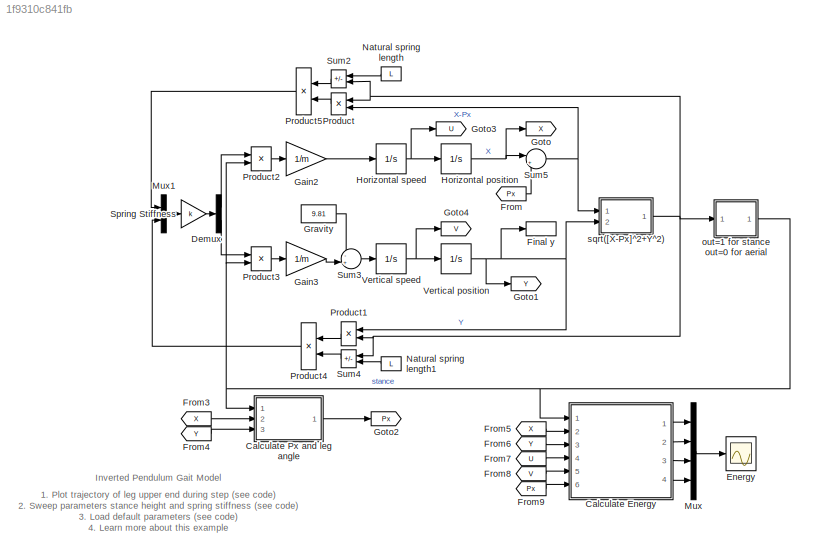
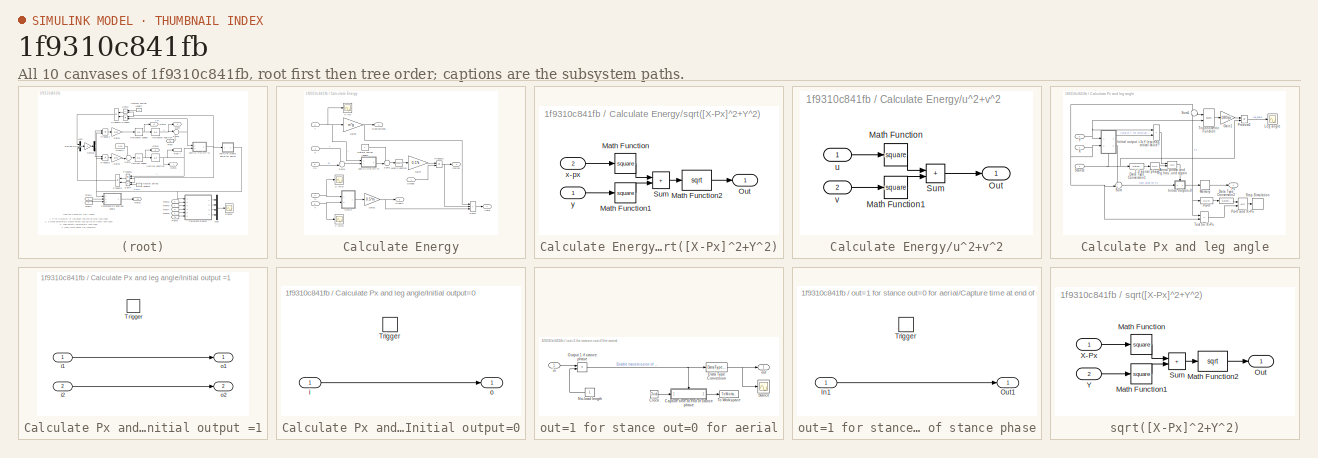
[diagram: thumbnail index - all 10 canvases of the model, root first then tree order]
MODEL slx_1f9310c841fb
KIND model
CONFIG AbsTol = auto
CONFIG EnableMultiTasking = on
CONFIG FixedStep = auto
CONFIG InitFcn = if (~exist('v0'))\n  sm_robot_run_4legs_param_def_load(bdroot)\nend
CONFIG MaxStep = auto
CONFIG MinStep = auto
CONFIG RelTol = 1e-3
CONFIG SampleTimeConstraint = Unconstrained
CONFIG SolverName = ode45
CONFIG StartTime = 0.0
CONFIG StopFcn = idx = find(leg_angle.time>=t_stance,1)-1;\nleg_angle0 = leg_angle.signals.values(idx);\ndAngle =  leg_angle.signals.values(idx)-leg_angle.signals.values(idx-1);\ndTime = leg_angle.time(idx) - leg_angle.time(idx-1);\nleg_vel0 = dAngle/dTime;
CONFIG StopTime = 10.0
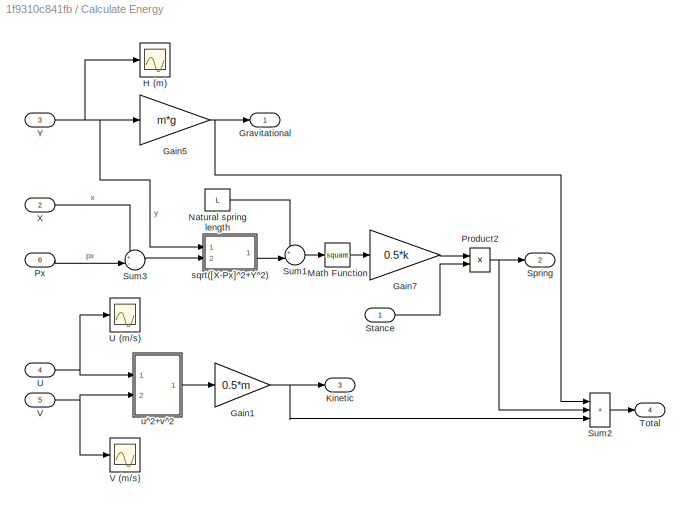
BLOCK [SubSystem] Calculate Energy
  Ports = [6, 4]
  RequestExecContextInheritance = off
BLOCK [Gain] Calculate Energy/Gain1
  Gain = 0.5*m
  OutDataTypeStr = Inherit: Same as input
  ParamDataTypeStr = Inherit: Same as input
  SaturateOnIntegerOverflow = on
BLOCK [Gain] Calculate Energy/Gain5
  Gain = m*g
  OutDataTypeStr = Inherit: Same as input
  ParamDataTypeStr = Inherit: Same as input
  SaturateOnIntegerOverflow = on
BLOCK [Gain] Calculate Energy/Gain7
  Gain = 0.5*k
  OutDataTypeStr = Inherit: Same as input
  ParamDataTypeStr = Inherit: Same as input
  SaturateOnIntegerOverflow = on
BLOCK [Outport] Calculate Energy/Gravitational
  VectorParamsAs1DForOutWhenUnconnected = off
BLOCK [Scope] Calculate Energy/H (m)
  Floating = off
  NumInputPorts = 1
  Ports = [1]
  ScopeSpecificationString = Simulink.scopes.TimeScopeBlockCfg('CurrentConfiguration', extmgr.ConfigurationSet(extmgr.Configuration('Core','General UI',true),extmgr.Configuration('Core','Source UI',true),extmgr.Configuration('Sources','WiredSimulink',true,'DataLoggingVariableName','ScopeData3','DataLoggingSaveFormat','StructureWithTime','DataLoggingLimitDataPoints',true,'DataLoggingDecimation','1','DataLoggingDecimateData',tr...<+1745ch>
BLOCK [Outport] Calculate Energy/Kinetic
  Port = 3
  VectorParamsAs1DForOutWhenUnconnected = off
BLOCK [Math] Calculate Energy/Math Function
  Operator = square
  Ports = [1, 1]
  SignedPower = on
BLOCK [Constant] Calculate Energy/Natural spring length
  Value = L
BLOCK [Product] Calculate Energy/Product2
  InputSameDT = on
  OutDataTypeStr = Inherit: Same as first input
  Ports = [2, 1]
  SaturateOnIntegerOverflow = on
BLOCK [Inport] Calculate Energy/Px
  Port = 6
BLOCK [Outport] Calculate Energy/Spring
  Port = 2
  VectorParamsAs1DForOutWhenUnconnected = off
BLOCK [Inport] Calculate Energy/Stance
BLOCK [Sum] Calculate Energy/Sum1
  InputSameDT = on
  Inputs = +-|
  OutDataTypeStr = Inherit: Same as first input
  Ports = [2, 1]
  SaturateOnIntegerOverflow = on
BLOCK [Sum] Calculate Energy/Sum2
  IconShape = rectangular
  InputSameDT = on
  Inputs = +++
  OutDataTypeStr = Inherit: Same as first input
  Ports = [3, 1]
  SaturateOnIntegerOverflow = on
BLOCK [Sum] Calculate Energy/Sum3
  InputSameDT = on
  Inputs = +-|
  OutDataTypeStr = Inherit: Same as first input
  Ports = [2, 1]
  SaturateOnIntegerOverflow = on
BLOCK [Outport] Calculate Energy/Total
  Port = 4
  VectorParamsAs1DForOutWhenUnconnected = off
BLOCK [Inport] Calculate Energy/U
  Port = 4
BLOCK [Scope] Calculate Energy/U (m//s)
  Floating = off
  NumInputPorts = 1
  Ports = [1]
  ScopeSpecificationString = Simulink.scopes.TimeScopeBlockCfg('CurrentConfiguration', extmgr.ConfigurationSet(extmgr.Configuration('Core','General UI',true),extmgr.Configuration('Core','Source UI',true),extmgr.Configuration('Sources','WiredSimulink',true,'DataLoggingVariableName','ScopeData1','DataLoggingSaveFormat','StructureWithTime','DataLoggingLimitDataPoints',true,'DataLoggingDecimation','1','DataLoggingDecimateData',tr...<+1702ch>
BLOCK [Inport] Calculate Energy/V
  Port = 5
BLOCK [Scope] Calculate Energy/V (m//s)
  Floating = off
  NumInputPorts = 1
  Ports = [1]
  ScopeSpecificationString = Simulink.scopes.TimeScopeBlockCfg('CurrentConfiguration', extmgr.ConfigurationSet(extmgr.Configuration('Core','General UI',true),extmgr.Configuration('Core','Source UI',true),extmgr.Configuration('Sources','WiredSimulink',true,'DataLoggingVariableName','ScopeData2','DataLoggingSaveFormat','StructureWithTime','DataLoggingLimitDataPoints',true,'DataLoggingDecimation','1','DataLoggingDecimateData',tr...<+1742ch>
BLOCK [Inport] Calculate Energy/X
  Port = 2
BLOCK [Inport] Calculate Energy/Y
  Port = 3
BLOCK [SubSystem] Calculate Energy/sqrt([X-Px]^2+Y^2)
  Ports = [2, 1]
  RequestExecContextInheritance = off
BLOCK [Math] Calculate Energy/sqrt([X-Px]^2+Y^2)/Math Function
  Operator = square
  Ports = [1, 1]
  SignedPower = on
BLOCK [Math] Calculate Energy/sqrt([X-Px]^2+Y^2)/Math Function1
  Operator = square
  Ports = [1, 1]
  SignedPower = on
BLOCK [Math] Calculate Energy/sqrt([X-Px]^2+Y^2)/Math Function2
  Operator = sqrt
  Ports = [1, 1]
  SignedPower = on
BLOCK [Outport] Calculate Energy/sqrt([X-Px]^2+Y^2)/Out
  VectorParamsAs1DForOutWhenUnconnected = off
BLOCK [Sum] Calculate Energy/sqrt([X-Px]^2+Y^2)/Sum
  IconShape = rectangular
  InputSameDT = on
  OutDataTypeStr = Inherit: Same as first input
  Ports = [2, 1]
  SaturateOnIntegerOverflow = on
BLOCK [Inport] Calculate Energy/sqrt([X-Px]^2+Y^2)/x-px
  Port = 2
BLOCK [Inport] Calculate Energy/sqrt([X-Px]^2+Y^2)/y
BLOCK [SubSystem] Calculate Energy/u^2+v^2
  Ports = [2, 1]
  RequestExecContextInheritance = off
BLOCK [Math] Calculate Energy/u^2+v^2/Math Function
  Operator = square
  Ports = [1, 1]
  SignedPower = on
BLOCK [Math] Calculate Energy/u^2+v^2/Math Function1
  Operator = square
  Ports = [1, 1]
  SignedPower = on
BLOCK [Outport] Calculate Energy/u^2+v^2/Out
  VectorParamsAs1DForOutWhenUnconnected = off
BLOCK [Sum] Calculate Energy/u^2+v^2/Sum
  IconShape = rectangular
  InputSameDT = on
  OutDataTypeStr = Inherit: Same as first input
  Ports = [2, 1]
  SaturateOnIntegerOverflow = on
BLOCK [Inport] Calculate Energy/u^2+v^2/u
BLOCK [Inport] Calculate Energy/u^2+v^2/v
  Port = 2
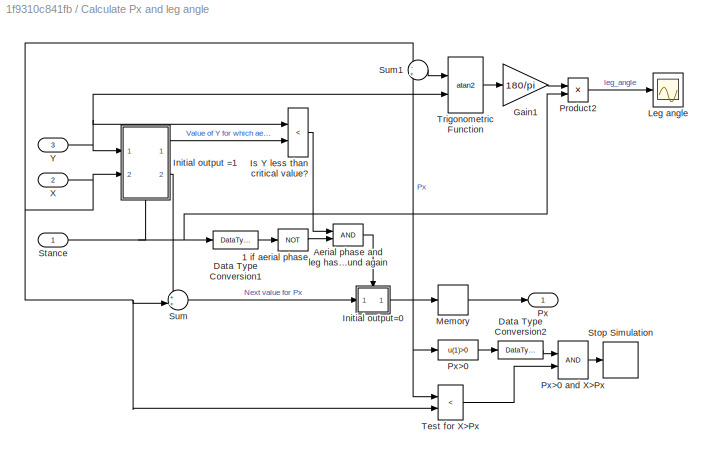
BLOCK [SubSystem] Calculate Px and leg angle
  Ports = [3, 1]
  RequestExecContextInheritance = off
BLOCK [Logic] Calculate Px and leg angle/1 if aerial phase
  Operator = NOT
  Ports = [1, 1]
BLOCK [Logic] Calculate Px and leg angle/Aerial phase and leg has just touched ground again
  Ports = [2, 1]
BLOCK [DataTypeConversion] Calculate Px and leg angle/Data Type Conversion1
  OutDataTypeStr = boolean
  RndMeth = Floor
  SaturateOnIntegerOverflow = off
BLOCK [DataTypeConversion] Calculate Px and leg angle/Data Type Conversion2
  OutDataTypeStr = boolean
  RndMeth = Floor
  SaturateOnIntegerOverflow = off
BLOCK [Gain] Calculate Px and leg angle/Gain1
  Gain = 180/pi
  OutDataTypeStr = Inherit: Same as input
  ParamDataTypeStr = Inherit: Same as input
  SaturateOnIntegerOverflow = on
BLOCK [SubSystem] Calculate Px and leg angle/Initial output =1
  NameLocation = top
  Ports = [2, 2, 0, 1]
  RequestExecContextInheritance = off
  TreatAsAtomicUnit = on
BLOCK [TriggerPort] Calculate Px and leg angle/Initial output =1/Trigger
  Ports = []
  TriggerType = falling
  VariantControl = Variant
BLOCK [Inport] Calculate Px and leg angle/Initial output =1/i1
BLOCK [Inport] Calculate Px and leg angle/Initial output =1/i2
  Port = 2
BLOCK [Outport] Calculate Px and leg angle/Initial output =1/o1
  InitialOutput = y0
  VectorParamsAs1DForOutWhenUnconnected = off
BLOCK [Outport] Calculate Px and leg angle/Initial output =1/o2
  InitialOutput = x0
  Port = 2
  VectorParamsAs1DForOutWhenUnconnected = off
BLOCK [SubSystem] Calculate Px and leg angle/Initial output=0
  Ports = [1, 1, 0, 1]
  RequestExecContextInheritance = off
  TreatAsAtomicUnit = on
BLOCK [TriggerPort] Calculate Px and leg angle/Initial output=0/Trigger
  Ports = []
  VariantControl = Variant
BLOCK [Inport] Calculate Px and leg angle/Initial output=0/i
BLOCK [Outport] Calculate Px and leg angle/Initial output=0/o
  InitialOutput = 0
  VectorParamsAs1DForOutWhenUnconnected = off
BLOCK [RelationalOperator] Calculate Px and leg angle/Is Y less than critical value?
  Operator = <
  Ports = [2, 1]
BLOCK [Scope] Calculate Px and leg angle/Leg angle
  Floating = off
  NumInputPorts = 1
  Ports = [1]
  ScopeSpecificationString = Simulink.scopes.TimeScopeBlockCfg('CurrentConfiguration', extmgr.ConfigurationSet(extmgr.Configuration('Core','General UI',true),extmgr.Configuration('Core','Source UI',true),extmgr.Configuration('Sources','WiredSimulink',true,'DataLogging',true,'DataLoggingVariableName','leg_angle','DataLoggingSaveFormat','StructureWithTime','DataLoggingDecimation','1','DataLoggingDecimateData',true),extmgr.Confi...<+1718ch>
BLOCK [Memory] Calculate Px and leg angle/Memory
BLOCK [Product] Calculate Px and leg angle/Product2
  InputSameDT = on
  OutDataTypeStr = Inherit: Same as first input
  Ports = [2, 1]
  SaturateOnIntegerOverflow = on
BLOCK [Outport] Calculate Px and leg angle/Px
  VectorParamsAs1DForOutWhenUnconnected = off
BLOCK [Fcn] Calculate Px and leg angle/Px>0
  Expr = u(1)>0
BLOCK [Logic] Calculate Px and leg angle/Px>0 and X>Px
  Ports = [2, 1]
BLOCK [Inport] Calculate Px and leg angle/Stance
BLOCK [Stop] Calculate Px and leg angle/Stop Simulation
BLOCK [Sum] Calculate Px and leg angle/Sum
  InputSameDT = on
  Inputs = ++|
  OutDataTypeStr = Inherit: Same as first input
  Ports = [2, 1]
  SaturateOnIntegerOverflow = on
BLOCK [Sum] Calculate Px and leg angle/Sum1
  InputSameDT = on
  Inputs = -+
  OutDataTypeStr = Inherit: Same as first input
  Ports = [2, 1]
  SaturateOnIntegerOverflow = on
BLOCK [RelationalOperator] Calculate Px and leg angle/Test for X>Px
  Operator = <
  Ports = [2, 1]
BLOCK [Trigonometry] Calculate Px and leg angle/Trigonometric Function
  Operator = atan2
  Ports = [2, 1]
BLOCK [Inport] Calculate Px and leg angle/X
  Port = 2
BLOCK [Inport] Calculate Px and leg angle/Y
  Port = 3
BLOCK [Demux] Demux
  Outputs = 2
  Ports = [1, 2]
BLOCK [Scope] Energy
  Floating = off
  NumInputPorts = 1
  Ports = [1]
  ScopeSpecificationString = Simulink.scopes.TimeScopeBlockCfg('CurrentConfiguration', extmgr.ConfigurationSet(extmgr.Configuration('Core','General UI',true),extmgr.Configuration('Core','Source UI',true),extmgr.Configuration('Sources','WiredSimulink',true,'DataLoggingSaveFormat','StructureWithTime','DataLoggingLimitDataPoints',true,'DataLoggingDecimation','1','DataLoggingDecimateData',true),extmgr.Configuration('Visuals','Tim...<+1771ch>
BLOCK [ToWorkspace] Final y
  MaxDataPoints = 1
  Ports = [1]
  SampleTime = -1
  VariableName = y
BLOCK [From] From
  GotoTag = Px
BLOCK [From] From3
  GotoTag = X
BLOCK [From] From4
  GotoTag = Y
BLOCK [From] From5
  GotoTag = X
BLOCK [From] From6
  GotoTag = Y
BLOCK [From] From7
  GotoTag = U
BLOCK [From] From8
  GotoTag = V
BLOCK [From] From9
  GotoTag = Px
BLOCK [Gain] Gain2
  Gain = 1/m
  OutDataTypeStr = Inherit: Same as input
  ParamDataTypeStr = Inherit: Same as input
  SaturateOnIntegerOverflow = on
BLOCK [Gain] Gain3
  Gain = 1/m
  OutDataTypeStr = Inherit: Same as input
  ParamDataTypeStr = Inherit: Same as input
  SaturateOnIntegerOverflow = on
BLOCK [Goto] Goto
  GotoTag = X
BLOCK [Goto] Goto1
  GotoTag = Y
BLOCK [Goto] Goto2
  GotoTag = Px
BLOCK [Goto] Goto3
  GotoTag = U
BLOCK [Goto] Goto4
  GotoTag = V
BLOCK [Constant] Gravity
  Value = 9.81
BLOCK [Integrator] Horizontal position
  InitialCondition = x0
  Ports = [1, 1]
BLOCK [Integrator] Horizontal speed
  InitialCondition = u0
  Ports = [1, 1]
BLOCK [Mux] Mux
  DisplayOption = bar
  Ports = [4, 1]
BLOCK [Mux] Mux1
  DisplayOption = bar
  Inputs = 2
  Ports = [2, 1]
BLOCK [Constant] Natural spring length
  Value = L
BLOCK [Constant] Natural spring length1
  Value = L
BLOCK [Product] Product
  InputSameDT = on
  Inputs = /*
  NameLocation = top
  OutDataTypeStr = Inherit: Same as first input
  Ports = [2, 1]
  SaturateOnIntegerOverflow = on
BLOCK [Product] Product1
  InputSameDT = on
  Inputs = */
  NameLocation = top
  OutDataTypeStr = Inherit: Same as first input
  Ports = [2, 1]
  SaturateOnIntegerOverflow = on
BLOCK [Product] Product2
  InputSameDT = on
  OutDataTypeStr = Inherit: Same as first input
  Ports = [2, 1]
  SaturateOnIntegerOverflow = on
BLOCK [Product] Product3
  InputSameDT = on
  OutDataTypeStr = Inherit: Same as first input
  Ports = [2, 1]
  SaturateOnIntegerOverflow = on
BLOCK [Product] Product4
  Ports = [2, 1]
BLOCK [Product] Product5
  Ports = [2, 1]
BLOCK [Gain] Spring Stiffness
  Gain = k
  OutDataTypeStr = Inherit: Same as input
  ParamDataTypeStr = Inherit: Same as input
  SaturateOnIntegerOverflow = on
BLOCK [Sum] Sum2
  IconShape = rectangular
  InputSameDT = on
  Inputs = +-
  NameLocation = top
  OutDataTypeStr = Inherit: Same as first input
  Ports = [2, 1]
  SaturateOnIntegerOverflow = on
BLOCK [Sum] Sum3
  InputSameDT = on
  Inputs = -+|
  OutDataTypeStr = Inherit: Same as first input
  Ports = [2, 1]
  SaturateOnIntegerOverflow = on
BLOCK [Sum] Sum4
  IconShape = rectangular
  InputSameDT = on
  Inputs = -+
  NameLocation = top
  OutDataTypeStr = Inherit: Same as first input
  Ports = [2, 1]
  SaturateOnIntegerOverflow = on
BLOCK [Sum] Sum5
  InputSameDT = on
  Inputs = |+-
  OutDataTypeStr = Inherit: Same as first input
  Ports = [2, 1]
  SaturateOnIntegerOverflow = on
BLOCK [Integrator] Vertical position
  AttributesFormatString = Init Height = %<InitialCondition>
  InitialCondition = y0
  Ports = [1, 1]
BLOCK [Integrator] Vertical speed
  InitialCondition = v0
  Ports = [1, 1]
BLOCK [SubSystem] out=1 for stance out=0 for aerial
  NameLocation = top
  Ports = [1, 1]
  RequestExecContextInheritance = off
BLOCK [SubSystem] out=1 for stance out=0 for aerial/Capture time at end of stance phase
  Ports = [1, 1, 0, 1]
  RequestExecContextInheritance = off
  TreatAsAtomicUnit = on
BLOCK [Inport] out=1 for stance out=0 for aerial/Capture time at end of stance phase/In1
BLOCK [Outport] out=1 for stance out=0 for aerial/Capture time at end of stance phase/Out1
  VectorParamsAs1DForOutWhenUnconnected = off
BLOCK [TriggerPort] out=1 for stance out=0 for aerial/Capture time at end of stance phase/Trigger
  Ports = []
  StatesWhenEnabling = held
  TriggerType = falling
  VariantControl = Variant
BLOCK [Clock] out=1 for stance out=0 for aerial/Clock
BLOCK [DataTypeConversion] out=1 for stance out=0 for aerial/Data Type Conversion
  OutDataTypeStr = double
  RndMeth = Floor
  SaturateOnIntegerOverflow = off
BLOCK [Constant] out=1 for stance out=0 for aerial/No-load length
  Value = L
BLOCK [RelationalOperator] out=1 for stance out=0 for aerial/Output 1 if stance phase
  Operator = <
  Ports = [2, 1]
BLOCK [Scope] out=1 for stance out=0 for aerial/Stance
  Floating = off
  NumInputPorts = 1
  Ports = [1]
  ScopeSpecificationString = Simulink.scopes.TimeScopeBlockCfg('CurrentConfiguration', extmgr.ConfigurationSet(extmgr.Configuration('Core','General UI',true),extmgr.Configuration('Core','Source UI',true),extmgr.Configuration('Sources','WiredSimulink',true,'DataLoggingVariableName','stance','DataLoggingSaveFormat','StructureWithTime','DataLoggingDecimation','1','DataLoggingDecimateData',true,'DataLogging',true),extmgr.Configur...<+1716ch>
BLOCK [ToWorkspace] out=1 for stance out=0 for aerial/To Workspace
  MaxDataPoints = 1
  Ports = [1]
  SampleTime = -1
  VariableName = t_stance
BLOCK [Inport] out=1 for stance out=0 for aerial/in
BLOCK [Outport] out=1 for stance out=0 for aerial/out
  VectorParamsAs1DForOutWhenUnconnected = off
BLOCK [SubSystem] sqrt([X-Px]^2+Y^2)
  Ports = [2, 1]
  RequestExecContextInheritance = off
BLOCK [Math] sqrt([X-Px]^2+Y^2)/Math Function
  Operator = square
  Ports = [1, 1]
  SignedPower = on
BLOCK [Math] sqrt([X-Px]^2+Y^2)/Math Function1
  Operator = square
  Ports = [1, 1]
  SignedPower = on
BLOCK [Math] sqrt([X-Px]^2+Y^2)/Math Function2
  Operator = sqrt
  Ports = [1, 1]
  SignedPower = on
BLOCK [Outport] sqrt([X-Px]^2+Y^2)/Out
  VectorParamsAs1DForOutWhenUnconnected = off
BLOCK [Sum] sqrt([X-Px]^2+Y^2)/Sum
  IconShape = rectangular
  InputSameDT = on
  OutDataTypeStr = Inherit: Same as first input
  Ports = [2, 1]
  SaturateOnIntegerOverflow = on
BLOCK [Inport] sqrt([X-Px]^2+Y^2)/X-Px
BLOCK [Inport] sqrt([X-Px]^2+Y^2)/Y
  Port = 2
ANNOTATION (root): 1. Plot trajectory of leg upper end during step ( see code ) 2. Sweep parameters stance height and spring stiffness ( see code ) 3. Load default parameters ( see code ) 4. Learn more about this example
ANNOTATION (root): Inverted Pendulum Gait Model
NET Calculate Energy/Gain1:1 -> Calculate Energy/Kinetic:1, Calculate Energy/Sum2:3
NET Calculate Energy/Gain5:1 -> Calculate Energy/Gravitational:1, Calculate Energy/Sum2:1
LINE Calculate Energy/Gain7:1 -> Calculate Energy/Product2:1
LINE Calculate Energy/Math Function:1 -> Calculate Energy/Gain7:1
LINE Calculate Energy/Natural spring length:1 -> Calculate Energy/Sum1:1
NET Calculate Energy/Product2:1 -> Calculate Energy/Spring:1, Calculate Energy/Sum2:2
LINE Calculate Energy/Px:1 -> Calculate Energy/Sum3:2
LINE Calculate Energy/Stance:1 -> Calculate Energy/Product2:2
LINE Calculate Energy/Sum1:1 -> Calculate Energy/Math Function:1
LINE Calculate Energy/Sum2:1 -> Calculate Energy/Total:1
LINE Calculate Energy/Sum3:1 -> Calculate Energy/sqrt([X-Px]^2+Y^2):2
NET Calculate Energy/U:1 -> Calculate Energy/U (m//s):1, Calculate Energy/u^2+v^2:1
NET Calculate Energy/V:1 -> Calculate Energy/V (m//s):1, Calculate Energy/u^2+v^2:2
LINE Calculate Energy/X:1 -> Calculate Energy/Sum3:1
NET Calculate Energy/Y:1 -> Calculate Energy/Gain5:1, Calculate Energy/H (m):1, Calculate Energy/sqrt([X-Px]^2+Y^2):1
LINE Calculate Energy/sqrt([X-Px]^2+Y^2)/Math Function1:1 -> Calculate Energy/sqrt([X-Px]^2+Y^2)/Sum:2
LINE Calculate Energy/sqrt([X-Px]^2+Y^2)/Math Function2:1 -> Calculate Energy/sqrt([X-Px]^2+Y^2)/Out:1
LINE Calculate Energy/sqrt([X-Px]^2+Y^2)/Math Function:1 -> Calculate Energy/sqrt([X-Px]^2+Y^2)/Sum:1
LINE Calculate Energy/sqrt([X-Px]^2+Y^2)/Sum:1 -> Calculate Energy/sqrt([X-Px]^2+Y^2)/Math Function2:1
LINE Calculate Energy/sqrt([X-Px]^2+Y^2)/x-px:1 -> Calculate Energy/sqrt([X-Px]^2+Y^2)/Math Function:1
LINE Calculate Energy/sqrt([X-Px]^2+Y^2)/y:1 -> Calculate Energy/sqrt([X-Px]^2+Y^2)/Math Function1:1
LINE Calculate Energy/sqrt([X-Px]^2+Y^2):1 -> Calculate Energy/Sum1:2
LINE Calculate Energy/u^2+v^2/Math Function1:1 -> Calculate Energy/u^2+v^2/Sum:2
LINE Calculate Energy/u^2+v^2/Math Function:1 -> Calculate Energy/u^2+v^2/Sum:1
LINE Calculate Energy/u^2+v^2/Sum:1 -> Calculate Energy/u^2+v^2/Out:1
LINE Calculate Energy/u^2+v^2/u:1 -> Calculate Energy/u^2+v^2/Math Function:1
LINE Calculate Energy/u^2+v^2/v:1 -> Calculate Energy/u^2+v^2/Math Function1:1
LINE Calculate Energy/u^2+v^2:1 -> Calculate Energy/Gain1:1
LINE Calculate Energy:1 -> Mux:1
LINE Calculate Energy:2 -> Mux:2
LINE Calculate Energy:3 -> Mux:3
LINE Calculate Energy:4 -> Mux:4
LINE Calculate Px and leg angle/1 if aerial phase:1 -> Calculate Px and leg angle/Aerial phase and leg has just touched ground again:2
LINE Calculate Px and leg angle/Aerial phase and leg has just touched ground again:1 -> Calculate Px and leg angle/Initial output=0:trigger
LINE Calculate Px and leg angle/Data Type Conversion1:1 -> Calculate Px and leg angle/1 if aerial phase:1
LINE Calculate Px and leg angle/Data Type Conversion2:1 -> Calculate Px and leg angle/Px>0 and X>Px:1
LINE Calculate Px and leg angle/Gain1:1 -> Calculate Px and leg angle/Product2:1
LINE Calculate Px and leg angle/Initial output =1/i1:1 -> Calculate Px and leg angle/Initial output =1/o1:1
LINE Calculate Px and leg angle/Initial output =1/i2:1 -> Calculate Px and leg angle/Initial output =1/o2:1
LINE Calculate Px and leg angle/Initial output =1:1 -> Calculate Px and leg angle/Is Y less than critical value?:2
LINE Calculate Px and leg angle/Initial output =1:2 -> Calculate Px and leg angle/Sum:1
LINE Calculate Px and leg angle/Initial output=0/i:1 -> Calculate Px and leg angle/Initial output=0/o:1
NET Calculate Px and leg angle/Initial output=0:1 -> Calculate Px and leg angle/Memory:1, Calculate Px and leg angle/Px>0:1, Calculate Px and leg angle/Sum1:2, Calculate Px and leg angle/Test for X>Px:1
LINE Calculate Px and leg angle/Is Y less than critical value?:1 -> Calculate Px and leg angle/Aerial phase and leg has just touched ground again:1
LINE Calculate Px and leg angle/Memory:1 -> Calculate Px and leg angle/Px:1
LINE Calculate Px and leg angle/Product2:1 -> Calculate Px and leg angle/Leg angle:1
LINE Calculate Px and leg angle/Px>0 and X>Px:1 -> Calculate Px and leg angle/Stop Simulation:1
LINE Calculate Px and leg angle/Px>0:1 -> Calculate Px and leg angle/Data Type Conversion2:1
NET Calculate Px and leg angle/Stance:1 -> Calculate Px and leg angle/Data Type Conversion1:1, Calculate Px and leg angle/Initial output =1:trigger, Calculate Px and leg angle/Product2:2
LINE Calculate Px and leg angle/Sum1:1 -> Calculate Px and leg angle/Trigonometric Function:1
LINE Calculate Px and leg angle/Sum:1 -> Calculate Px and leg angle/Initial output=0:1
LINE Calculate Px and leg angle/Test for X>Px:1 -> Calculate Px and leg angle/Px>0 and X>Px:2
LINE Calculate Px and leg angle/Trigonometric Function:1 -> Calculate Px and leg angle/Gain1:1
NET Calculate Px and leg angle/X:1 -> Calculate Px and leg angle/Initial output =1:2, Calculate Px and leg angle/Sum1:1, Calculate Px and leg angle/Sum:2, Calculate Px and leg angle/Test for X>Px:2
NET Calculate Px and leg angle/Y:1 -> Calculate Px and leg angle/Initial output =1:1, Calculate Px and leg angle/Is Y less than critical value?:1, Calculate Px and leg angle/Trigonometric Function:2
LINE Calculate Px and leg angle:1 -> Goto2:1
LINE Demux:1 -> Product2:1
LINE Demux:2 -> Product3:1
LINE From3:1 -> Calculate Px and leg angle:2
LINE From4:1 -> Calculate Px and leg angle:3
LINE From5:1 -> Calculate Energy:2
LINE From6:1 -> Calculate Energy:3
LINE From7:1 -> Calculate Energy:4
LINE From8:1 -> Calculate Energy:5
LINE From9:1 -> Calculate Energy:6
LINE From:1 -> Sum5:2
LINE Gain2:1 -> Horizontal speed:1
LINE Gain3:1 -> Sum3:2
LINE Gravity:1 -> Sum3:1
NET Horizontal position:1 -> Goto:1, Sum5:1
NET Horizontal speed:1 -> Goto3:1, Horizontal position:1
LINE Mux1:1 -> Spring Stiffness:1
LINE Mux:1 -> Energy:1
LINE Natural spring length1:1 -> Sum4:2
LINE Natural spring length:1 -> Sum2:1
LINE Product1:1 -> Product4:1
LINE Product2:1 -> Gain2:1
LINE Product3:1 -> Gain3:1
LINE Product4:1 -> Mux1:2
LINE Product5:1 -> Mux1:1
LINE Product:1 -> Product5:2
LINE Spring Stiffness:1 -> Demux:1
LINE Sum2:1 -> Product5:1
LINE Sum3:1 -> Vertical speed:1
LINE Sum4:1 -> Product4:2
NET Sum5:1 -> Product:2, sqrt([X-Px]^2+Y^2):1
NET Vertical position:1 -> Final y:1, Goto1:1, Product1:1, sqrt([X-Px]^2+Y^2):2
NET Vertical speed:1 -> Goto4:1, Vertical position:1
LINE out=1 for stance out=0 for aerial/Capture time at end of stance phase/In1:1 -> out=1 for stance out=0 for aerial/Capture time at end of stance phase/Out1:1
LINE out=1 for stance out=0 for aerial/Capture time at end of stance phase:1 -> out=1 for stance out=0 for aerial/To Workspace:1
LINE out=1 for stance out=0 for aerial/Clock:1 -> out=1 for stance out=0 for aerial/Capture time at end of stance phase:1
NET out=1 for stance out=0 for aerial/Data Type Conversion:1 -> out=1 for stance out=0 for aerial/Stance:1, out=1 for stance out=0 for aerial/out:1
LINE out=1 for stance out=0 for aerial/No-load length:1 -> out=1 for stance out=0 for aerial/Output 1 if stance phase:2
NET out=1 for stance out=0 for aerial/Output 1 if stance phase:1 -> out=1 for stance out=0 for aerial/Capture time at end of stance phase:trigger, out=1 for stance out=0 for aerial/Data Type Conversion:1
LINE out=1 for stance out=0 for aerial/in:1 -> out=1 for stance out=0 for aerial/Output 1 if stance phase:1
NET out=1 for stance out=0 for aerial:1 -> Calculate Energy:1, Calculate Px and leg angle:1, Product2:2, Product3:2
LINE sqrt([X-Px]^2+Y^2)/Math Function1:1 -> sqrt([X-Px]^2+Y^2)/Sum:2
LINE sqrt([X-Px]^2+Y^2)/Math Function2:1 -> sqrt([X-Px]^2+Y^2)/Out:1
LINE sqrt([X-Px]^2+Y^2)/Math Function:1 -> sqrt([X-Px]^2+Y^2)/Sum:1
LINE sqrt([X-Px]^2+Y^2)/Sum:1 -> sqrt([X-Px]^2+Y^2)/Math Function2:1
LINE sqrt([X-Px]^2+Y^2)/X-Px:1 -> sqrt([X-Px]^2+Y^2)/Math Function:1
LINE sqrt([X-Px]^2+Y^2)/Y:1 -> sqrt([X-Px]^2+Y^2)/Math Function1:1
NET sqrt([X-Px]^2+Y^2):1 -> Product1:2, Product:1, Sum2:2, Sum4:1, out=1 for stance out=0 for aerial:1
note: NET lines group one-source signal fan-out (src -> all destinations, sorted); 1:1 wires keep LINE
